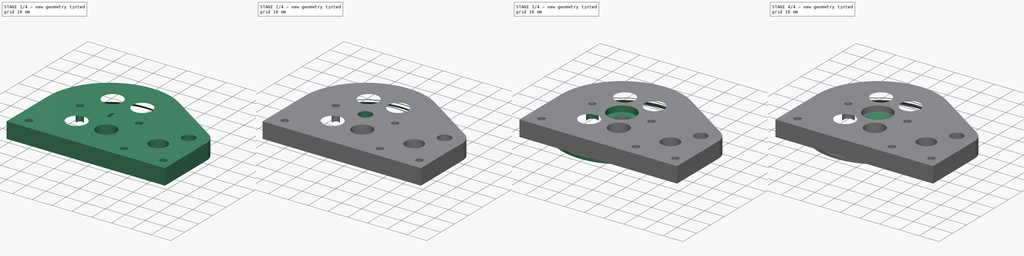
[diagram: build sequence overview — one tinted view per stage of 4, left to right]
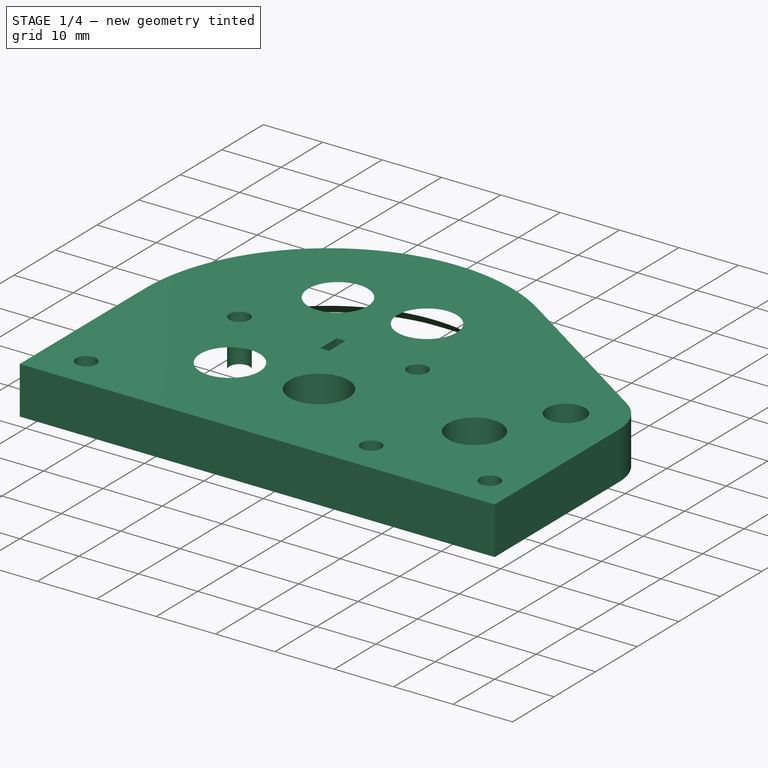
[diagram: stage 1 of 4 — iso view after this stage's code; geometry added in this stage tinted green]
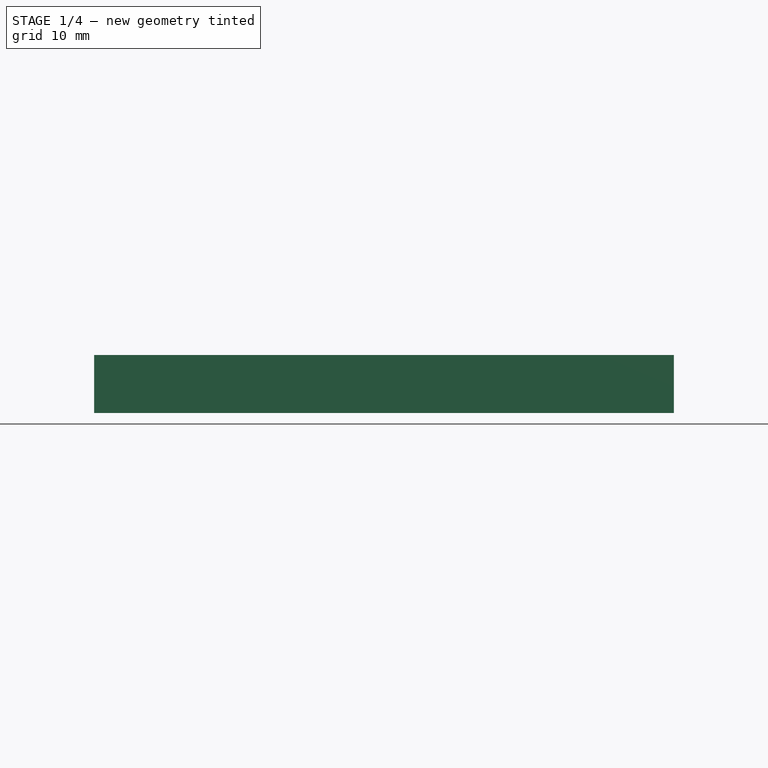
[diagram: stage 1 of 4 — front view after this stage's code; geometry added in this stage tinted green]
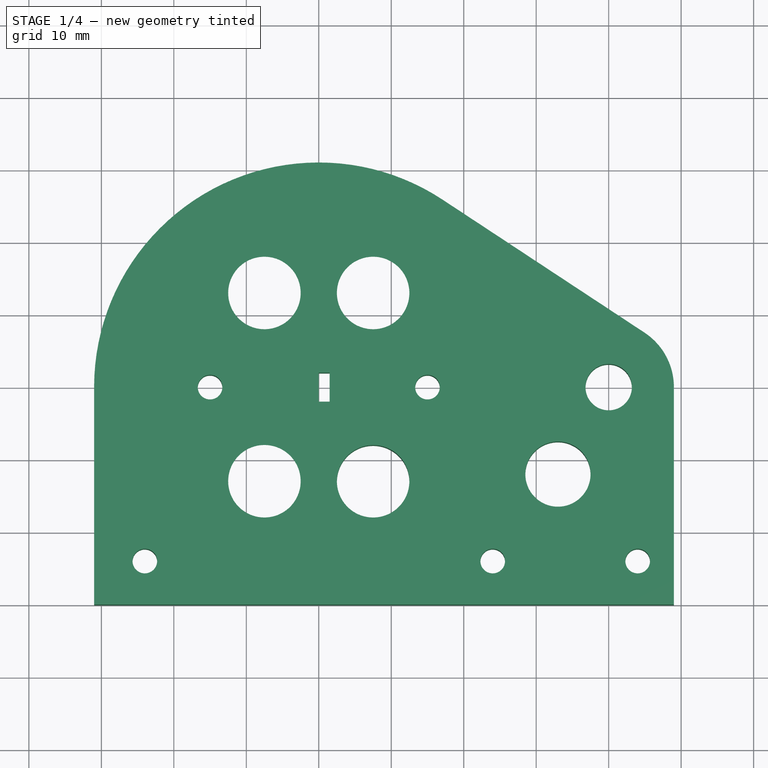
[diagram: stage 1 of 4 — top view after this stage's code; geometry added in this stage tinted green]
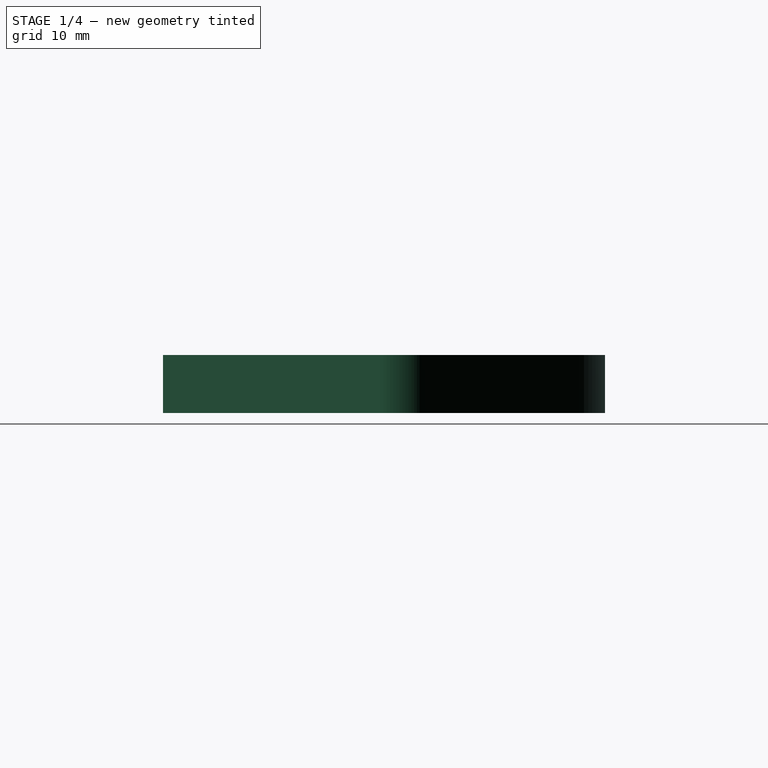
[diagram: stage 1 of 4 — right view after this stage's code; geometry added in this stage tinted green]
FCSTD DOCUMENT  (FreeCAD 0.16R6706 (Git))
Label: LowerKneeRace
License: All rights reserved
LicenseURL: http://en.wikipedia.org/wiki/All_rights_reserved
objects: Sketcher::SketchObject×8, PartDesign::Groove×3, PartDesign::Pocket×3, PartDesign::Pad×2, PartDesign::Chamfer×2
note: 26 computed .brp shape members not serialized (recipe doc carries the construction recipe); baked Part::Feature solids carry a one-line shape summary decoded from their .brp

FEATURE [Sketcher::SketchObject] Sketch
  sketch-geometry (34):
    g0: LineSegment StartX=49 StartY=-30 StartZ=0 EndX=-31 EndY=-30 EndZ=0
    g1: LineSegment StartX=-31 StartY=-30 StartZ=0 EndX=-31 EndY=0 EndZ=0
    g2: Circle [constr] CenterX=0 CenterY=0 CenterZ=0 NormalX=0 NormalY=0 NormalZ=1 Radius=8.5
    g3: Circle [constr] CenterX=0 CenterY=0 CenterZ=0 NormalX=0 NormalY=0 NormalZ=1 Radius=25
    g4: GeomPoint [constr] X=25 Y=0 Z=0
    g5: Circle [constr] CenterX=0 CenterY=0 CenterZ=0 NormalX=0 NormalY=0 NormalZ=1 Radius=3.2
    g6: LineSegment StartX=0 StartY=2 StartZ=0 EndX=1.5 EndY=2 EndZ=0
    g7: LineSegment StartX=1.5 StartY=2 StartZ=0 EndX=1.5 EndY=-2 EndZ=0
    g8: LineSegment StartX=1.5 StartY=-2 StartZ=0 EndX=0 EndY=-2 EndZ=0
    g9: LineSegment StartX=0 StartY=-2 StartZ=0 EndX=0 EndY=2 EndZ=0
    g10: GeomPoint [constr] X=0 Y=25 Z=0
    g11: GeomPoint [constr] X=0 Y=-25 Z=0
    g12: Circle CenterX=40 CenterY=0 CenterZ=0 NormalX=0 NormalY=0 NormalZ=1 Radius=3.2
    g13: LineSegment StartX=17.05 StartY=25.8901 StartZ=0 EndX=44.95 EndY=7.51648 EndZ=0
    g14: LineSegment StartX=49 StartY=1e-12 StartZ=0 EndX=49 EndY=-30 EndZ=0
    g15: LineSegment [constr] StartX=-31 StartY=-24 StartZ=0 EndX=49 EndY=-24 EndZ=0
    g16: Circle CenterX=-24 CenterY=-24 CenterZ=0 NormalX=0 NormalY=0 NormalZ=1 Radius=1.7
    g17: Circle CenterX=24 CenterY=-24 CenterZ=0 NormalX=0 NormalY=0 NormalZ=1 Radius=1.7
    g18: Circle CenterX=-15 CenterY=0 CenterZ=0 NormalX=0 NormalY=0 NormalZ=1 Radius=1.7
    g19: Circle CenterX=15 CenterY=0 CenterZ=0 NormalX=0 NormalY=0 NormalZ=1 Radius=1.7
    g20: Circle CenterX=44 CenterY=-24 CenterZ=0 NormalX=0 NormalY=0 NormalZ=1 Radius=1.7
    g21: ArcOfCircle CenterX=-3e-12 CenterY=3e-12 CenterZ=0 NormalX=0 NormalY=0 NormalZ=1 Radius=31 StartAngle=1.5708 EndAngle=3.14159
    g22: ArcOfCircle CenterX=0 CenterY=0 CenterZ=0 NormalX=0 NormalY=0 NormalZ=1 Radius=31 StartAngle=0.988432 EndAngle=1.5708
    g23: GeomPoint [constr] X=-25 Y=0 Z=0
    g24: ArcOfCircle CenterX=40 CenterY=0 CenterZ=0 NormalX=0 NormalY=0 NormalZ=1 Radius=9 StartAngle=0 EndAngle=0.988432
    g25: Circle CenterX=33 CenterY=-12 CenterZ=0 NormalX=0 NormalY=0 NormalZ=1 Radius=4.5
    g26: Circle CenterX=-7.5 CenterY=12.9904 CenterZ=0 NormalX=0 NormalY=0 NormalZ=1 Radius=5
    g27: Circle CenterX=7.5 CenterY=12.9904 CenterZ=0 NormalX=0 NormalY=0 NormalZ=1 Radius=5
    g28: Circle CenterX=-7.5 CenterY=-12.9904 CenterZ=0 NormalX=0 NormalY=0 NormalZ=1 Radius=5
    g29: Circle CenterX=7.5 CenterY=-12.9904 CenterZ=0 NormalX=0 NormalY=0 NormalZ=1 Radius=5
    g30: Circle [constr] CenterX=0 CenterY=0 CenterZ=0 NormalX=0 NormalY=0 NormalZ=1 Radius=15
    g31: LineSegment [constr] StartX=-7.5 StartY=12.9904 StartZ=0 EndX=7.5 EndY=-12.9904 EndZ=0
    g32: LineSegment [constr] StartX=-7.5 StartY=-12.9904 StartZ=0 EndX=7.5 EndY=12.9904 EndZ=0
    g33: Circle [constr] CenterX=40 CenterY=0 CenterZ=0 NormalX=0 NormalY=0 NormalZ=1 Radius=7
  constraints (92):
    c: Coincident(g0,g1)
    c: Horizontal(g0)
    c: Vertical(g1)
    c: Coincident(g2,g-1)
    c: Radius(g2) = 8.5
    c: Coincident(g3,g-1)
    c: Radius(g3) = 25
    c: PointOnObject(g4,g-1)
    c: PointOnObject(g4,g3)
    c: Coincident(g5,g-1)
    c: Radius(g5) = 3.2
    c: Coincident(g6,g7)
    c: Coincident(g7,g8)
    c: Coincident(g8,g9)
    c: Coincident(g9,g6)
    c: Horizontal(g6)
    c: Horizontal(g8)
    c: Vertical(g7)
    c: Vertical(g9)
    c: Symmetric(g6,g8,g-1)
    c: DistanceX(g8,g7) = 1.5
    c: DistanceY(g8,g6) = 4
    c: PointOnObject(g10,g3)
    c: PointOnObject(g11,g3)
    c: PointOnObject(g12,g-1)
    c: Radius(g12) = 3.2
    c: DistanceX(g-1,g12) = 40
    c: Coincident(g14,g0)
    c: Vertical(g14)
    c: PointOnObject(g15,g1)
    c: PointOnObject(g15,g14)
    c: Horizontal(g15)
    c: DistanceY(g0,g15) = 6
    c: PointOnObject(g16,g15)
    c: PointOnObject(g17,g15)
    c: PointOnObject(g20,g15)
    c: Radius(g20) = 1.7
    c: Equal(g20,g19)
    c: Equal(g20,g18)
    c: Equal(g20,g16)
    c: Equal(g20,g17)
    c: PointOnObject(g18,g-1)
    c: PointOnObject(g19,g-1)
    c: Symmetric(g18,g19,g-1)
    c: DistanceX(g18,g19) = 30
    c: Symmetric(g16,g17,g-2)
    c: DistanceX(g16,g17) = 48
    c: DistanceX(g17,g20) = 20
    c: Tangent(g1,g21) = 1.5708
    c: PointOnObject(g11,g-2)
    c: DistanceY(g0,g11) = 5
    c: PointOnObject(g1,g-1)
    c: Tangent(g13,g22) = 1.5708
    c: PointOnObject(g23,g3)
    c: PointOnObject(g23,g-1)
    c: DistanceX(g1,g23) = 6
    c: Coincident(g22,g21)
    c: DistanceY(g10,g21) = 6
    c: PointOnObject(g21,g-2)
    c: DistanceX(g12,g0) = 9
    c: Tangent(g14,g24) = 1.5708
    c: Tangent(g13,g24) = 1.5708
    c: Coincident(g12,g24)
    c: PointOnObject(g10,g-2)
    c: Coincident(g22,g-1)
    c: DistanceY(g0,g-1) = 30
    c: Radius(g25) = 4.5
    c: DistanceX(g17,g25) = 9
    c: DistanceY(g0,g25) = 18
    c: Coincident(g30,g-1)
    c: PointOnObject(g26,g30)
    c: PointOnObject(g27,g30)
    c: PointOnObject(g28,g30)
    c: PointOnObject(g29,g30)
    c: Radius(g30) = 15
    c: Coincident(g31,g29)
    c: Coincident(g32,g28)
    c: Coincident(g32,g27)
    c: PointOnObject(g-1,g31)
    c: PointOnObject(g-1,g32)
    c: Angle(g32,g31) = 1.0472
    c: Angle(g-1,g32) = 1.0472
    c: Coincident(g31,g26)
    c: Radius(g29) = 5
    c: Equal(g29,g28)
    c: Equal(g29,g26)
    c: Equal(g29,g27)
    c: DistanceX(g1,g-1) = 31
    c: DistanceX(g0,g16) = 7
    c: DistanceX(g20,g0) = 5
    c: Coincident(g33,g12)
    c: Radius(g33) = 7
FEATURE [PartDesign::Pad] Pad
  Length = 8
  Length2 = 100
  Sketch = -> Sketch
  Type = 0
FEATURE [Sketcher::SketchObject] Sketch002  label="Grove1"
  Placement = pos=(0,0,0) rot=(0.57735,0.57735,0.57735;2.0944rad)
  Support = -> Pad [Face22]
  sketch-geometry (10):
    g0: Circle [constr] CenterX=25 CenterY=-0.4 CenterZ=0 NormalX=0 NormalY=0 NormalZ=1 Radius=1.9
    g1: LineSegment StartX=23.113 StartY=0.4 StartZ=0 EndX=24.513 EndY=1.8 EndZ=0
    g2: LineSegment StartX=24.513 StartY=1.8 StartZ=0 EndX=25.487 EndY=1.8 EndZ=0
    g3: LineSegment StartX=25.487 StartY=1.8 StartZ=0 EndX=27.287 EndY=0 EndZ=0
    g4: LineSegment StartX=27.287 StartY=0 StartZ=0 EndX=27.287 EndY=-10 EndZ=0
    g5: LineSegment StartX=27.287 StartY=-10 StartZ=0 EndX=20 EndY=-10 EndZ=0
    g6: LineSegment [constr] StartX=25 StartY=1.8 StartZ=0 EndX=25 EndY=-10 EndZ=0
    g7: GeomPoint [constr] X=25 Y=1.5 Z=0
    g8: LineSegment StartX=23.113 StartY=0.4 StartZ=0 EndX=20 EndY=0.4 EndZ=0
    g9: LineSegment StartX=20 StartY=0.4 StartZ=0 EndX=20 EndY=-10 EndZ=0
  constraints (30):
    c: DistanceY(g0,g-1) = 0.4
    c: DistanceX(g-1,g0) = 25
    c: Radius(g0) = 1.9
    c: Coincident(g1,g2)
    c: Coincident(g2,g3)
    c: PointOnObject(g3,g-1)
    c: Coincident(g3,g4)
    c: Vertical(g4)
    c: Coincident(g4,g5)
    c: Horizontal(g5)
    c: PointOnObject(g6,g5)
    c: Vertical(g6)
    c: Horizontal(g2)
    c: PointOnObject(g6,g2)
    c: PointOnObject(g0,g6)
    c: Symmetric(g1,g2,g6)
    c: Tangent(g0,g1)
    c: Tangent(g3,g0)
    c: Angle(g1,g3) = 1.5708
    c: PointOnObject(g7,g0)
    c: PointOnObject(g7,g6)
    c: DistanceY(g7,g6) = 0.3
    c: Coincident(g8,g1)
    c: Horizontal(g8)
    c: Coincident(g9,g8)
    c: Vertical(g9)
    c: Coincident(g5,g9)
    c: DistanceY(g4,g3) = 10
    c: DistanceY(g-1,g8) = 0.4
    c: DistanceX(g-1,g8) = 20
FEATURE [PartDesign::Groove] Groove
  Angle = 360
  Axis = (0,0,1)
  Base = (0,0,0)
  ReferenceAxis = -> Sketch002 [V_Axis]
  Sketch = -> Sketch002
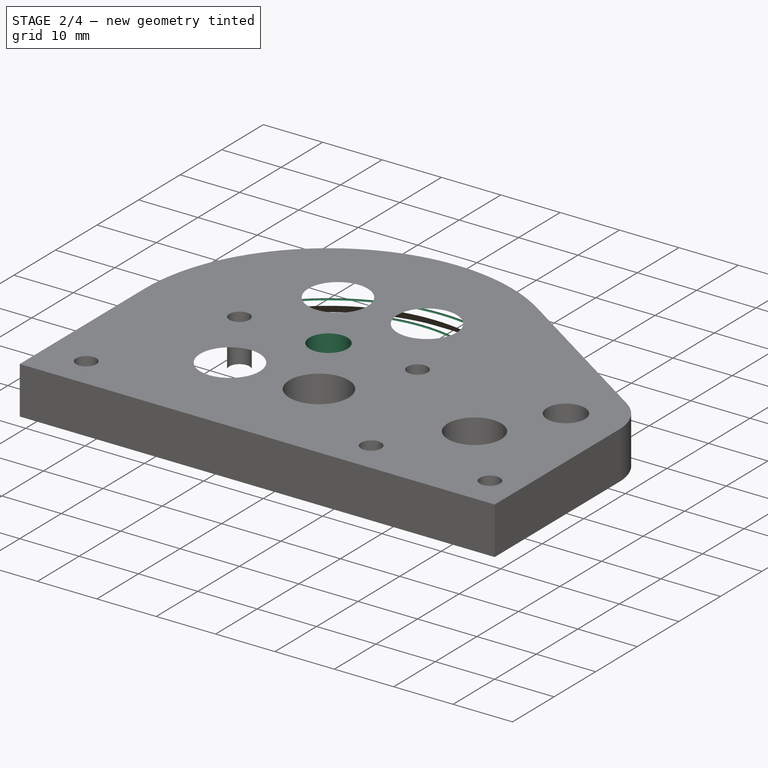
[diagram: stage 2 of 4 — iso view after this stage's code; geometry added in this stage tinted green]
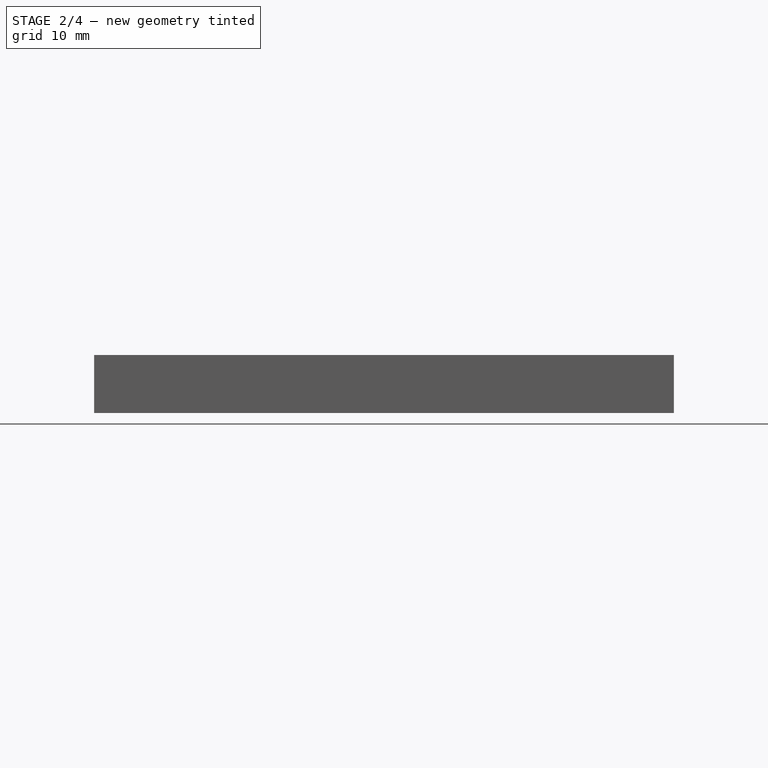
[diagram: stage 2 of 4 — front view after this stage's code; geometry added in this stage tinted green]
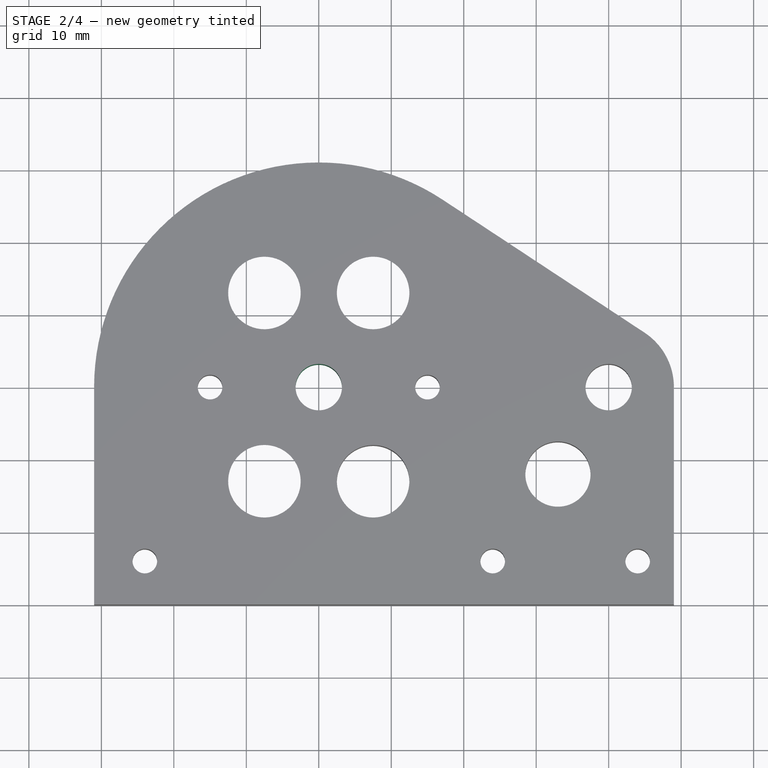
[diagram: stage 2 of 4 — top view after this stage's code; geometry added in this stage tinted green]
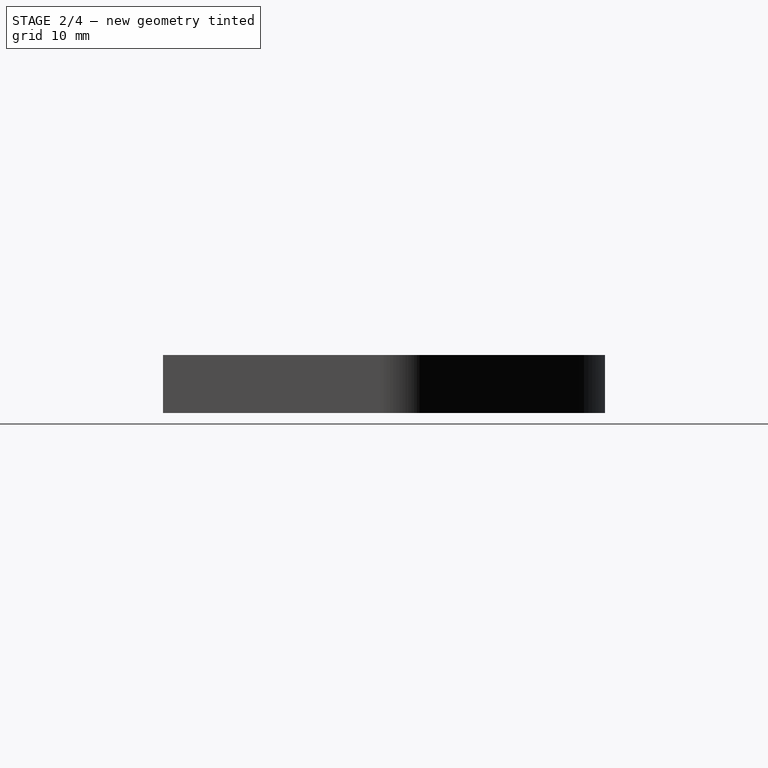
[diagram: stage 2 of 4 — right view after this stage's code; geometry added in this stage tinted green]
FEATURE [Sketcher::SketchObject] Sketch027  label="InnerReinforce"
  Placement = pos=(0,0,0) rot=(0.57735,0.57735,0.57735;2.0944rad)
  Support = -> Groove [Face25]
  sketch-geometry (1):
    g0: Circle CenterX=22.67 CenterY=1.93 CenterZ=0 NormalX=0 NormalY=0 NormalZ=1 Radius=0.15
  constraints (3):
    c: Radius(g0) = 0.15
    c: DistanceX(g-1,g0) = 22.67
    c: DistanceY(g-1,g0) = 1.93
FEATURE [PartDesign::Groove] Groove001
  Angle = 360
  Axis = (0,0,1)
  Base = (0,0,0)
  ReferenceAxis = -> Sketch027 [V_Axis]
  Sketch = -> Sketch027
FEATURE [Sketcher::SketchObject] Sketch028  label="OuterReinforce"
  Placement = pos=(0,0,0) rot=(0.57735,0.57735,0.57735;2.0944rad)
  Support = -> Groove001 [Face25]
  sketch-geometry (1):
    g0: Circle CenterX=27.33 CenterY=1.93 CenterZ=0 NormalX=0 NormalY=0 NormalZ=1 Radius=0.15
  constraints (3):
    c: Radius(g0) = 0.15
    c: DistanceX(g-1,g0) = 27.33
    c: DistanceY(g-1,g0) = 1.93
FEATURE [PartDesign::Groove] Groove002
  Angle = 360
  Axis = (0,0,1)
  Base = (0,0,0)
  ReferenceAxis = -> Sketch028 [V_Axis]
  Sketch = -> Sketch028
FEATURE [Sketcher::SketchObject] Sketch003  label="CentreHole"
  Placement = pos=(0,0,0) rot=(1,0,0;3.14159rad)
  Support = -> Groove002 [Face27]
  sketch-geometry (1):
    g0: Circle CenterX=0 CenterY=0 CenterZ=0 NormalX=0 NormalY=0 NormalZ=1 Radius=3.2
  constraints (2):
    c: Coincident(g0,g-1)
    c: Radius(g0) = 3.2
FEATURE [PartDesign::Pocket] Pocket001
  Length = 5
  Midplane = true
  Sketch = -> Sketch003
  Type = 1
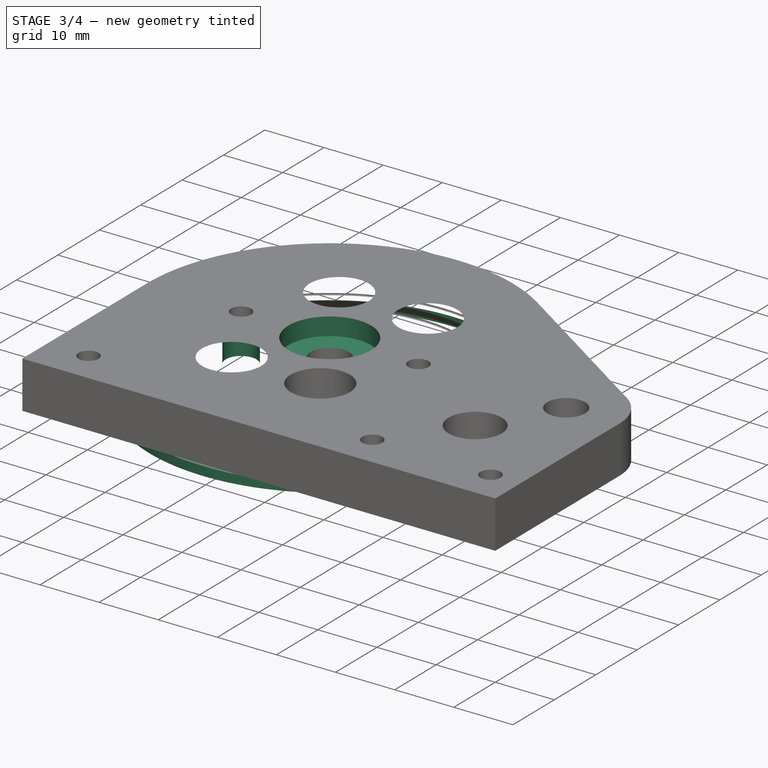
[diagram: stage 3 of 4 — iso view after this stage's code; geometry added in this stage tinted green]
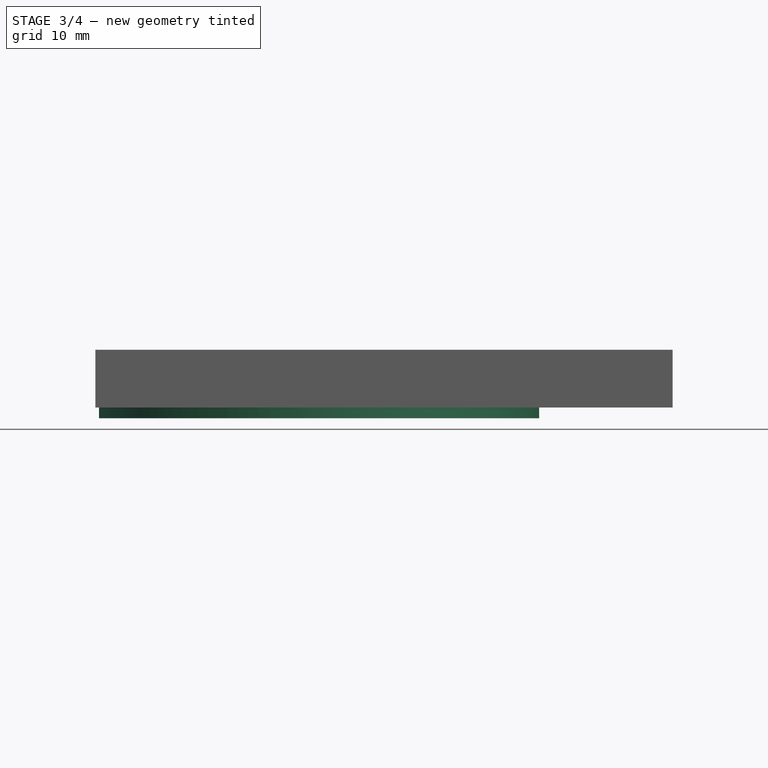
[diagram: stage 3 of 4 — front view after this stage's code; geometry added in this stage tinted green]
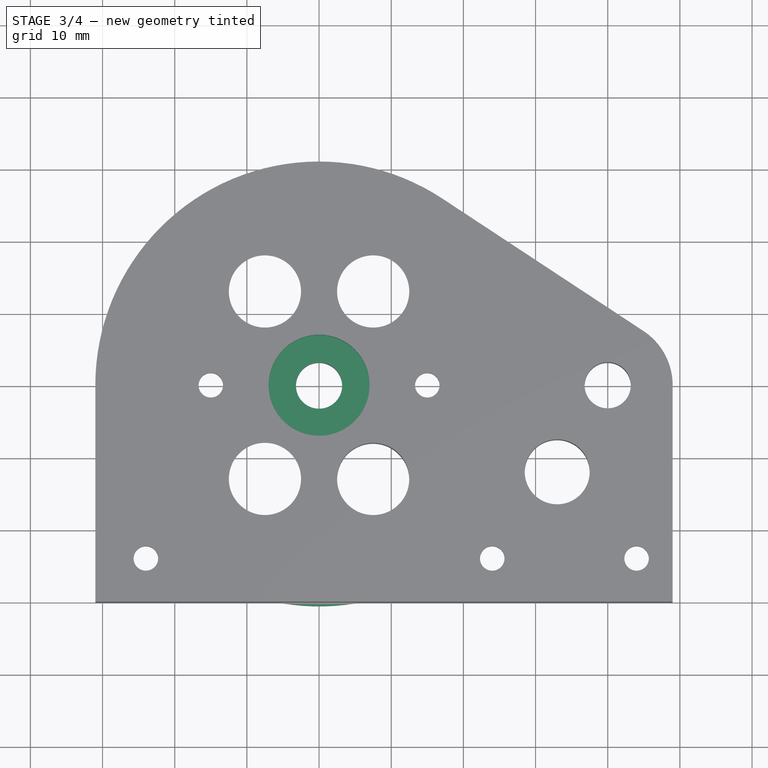
[diagram: stage 3 of 4 — top view after this stage's code; geometry added in this stage tinted green]
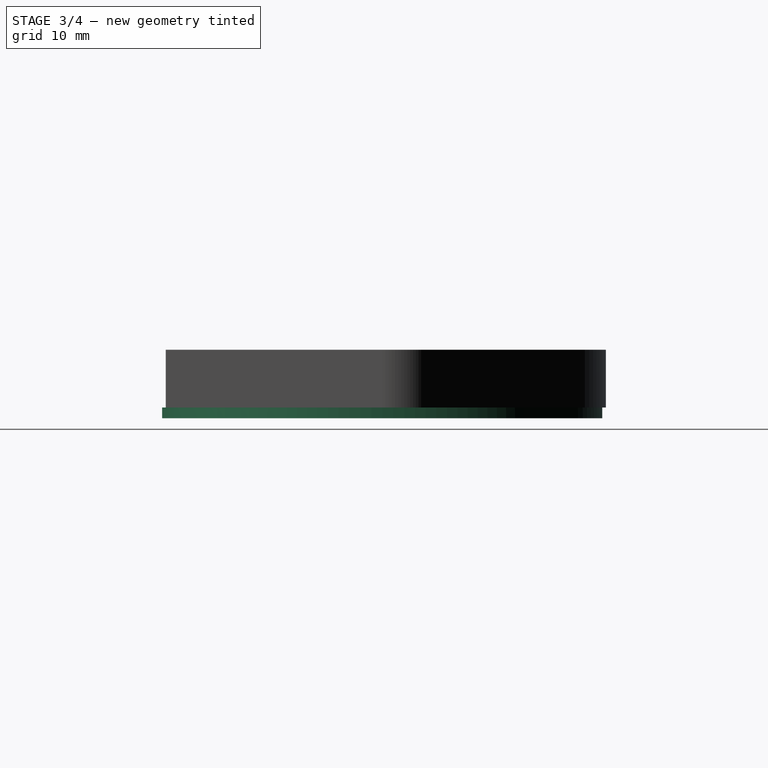
[diagram: stage 3 of 4 — right view after this stage's code; geometry added in this stage tinted green]
FEATURE [Sketcher::SketchObject] Sketch004  label="BearingHole"
  Placement = pos=(0,0,8) rot=(0,0,1;0rad)
  Support = -> Pocket001 [Face5]
  sketch-geometry (1):
    g0: Circle CenterX=0 CenterY=0 CenterZ=0 NormalX=0 NormalY=0 NormalZ=1 Radius=7
  constraints (2):
    c: Coincident(g0,g-1)
    c: Radius(g0) = 7
FEATURE [PartDesign::Pocket] Pocket
  Length = 3
  Sketch = -> Sketch004
  Type = 0
FEATURE [Sketcher::SketchObject] Sketch029  label="Inserts"
  Placement = pos=(0,0,0) rot=(1,0,0;3.14159rad)
  Support = -> Pocket [Face24]
  sketch-geometry (6):
    g0: Circle CenterX=-24 CenterY=24 CenterZ=0 NormalX=0 NormalY=0 NormalZ=1 Radius=2.6
    g1: Circle CenterX=24 CenterY=24 CenterZ=0 NormalX=0 NormalY=0 NormalZ=1 Radius=2.6
    g2: Circle CenterX=44 CenterY=24 CenterZ=0 NormalX=0 NormalY=0 NormalZ=1 Radius=2.6
    g3: Circle CenterX=-15 CenterY=0 CenterZ=0 NormalX=0 NormalY=0 NormalZ=1 Radius=2.6
    g4: Circle CenterX=15 CenterY=0 CenterZ=0 NormalX=0 NormalY=0 NormalZ=1 Radius=2.6
    g5: LineSegment [constr] StartX=-24 StartY=24 StartZ=0 EndX=44 EndY=24 EndZ=0
  constraints (17):
    c: PointOnObject(g3,g-1)
    c: PointOnObject(g4,g-1)
    c: Radius(g4) = 2.6
    c: Equal(g4,g3)
    c: Equal(g4,g0)
    c: Equal(g4,g1)
    c: Equal(g4,g2)
    c: Symmetric(g4,g3,g-1)
    c: DistanceX(g3,g4) = 30
    c: Coincident(g5,g0)
    c: Coincident(g5,g2)
    c: Horizontal(g5)
    c: PointOnObject(g1,g5)
    c: Symmetric(g0,g1,g-2)
    c: DistanceY(g-1,g0) = 24
    c: DistanceX(g0,g1) = 48
    c: DistanceX(g1,g2) = 20
FEATURE [PartDesign::Pocket] Pocket002
  Length = 5
  Sketch = -> Sketch029
  Type = 0
FEATURE [Sketcher::SketchObject] Sketch030
  Placement = pos=(0,0,0) rot=(1,0,0;3.14159rad)
  Support = -> Pocket002 [Face4]
  sketch-geometry (2):
    g0: Circle CenterX=0 CenterY=0 CenterZ=0 NormalX=0 NormalY=0 NormalZ=1 Radius=29.5
    g1: Circle CenterX=0 CenterY=0 CenterZ=0 NormalX=0 NormalY=0 NormalZ=1 Radius=30.5
  constraints (4):
    c: Coincident(g0,g-1)
    c: Coincident(g1,g-1)
    c: Radius(g0) = 29.5
    c: Radius(g1) = 30.5
FEATURE [PartDesign::Pad] Pad001
  Length = 1.5
  Length2 = 100
  Sketch = -> Sketch030
  Type = 0
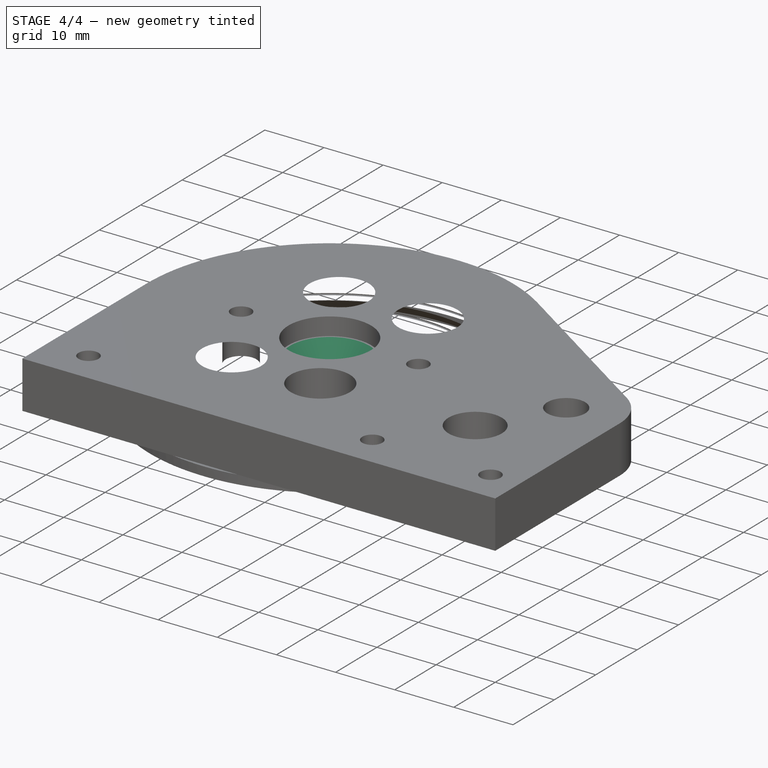
[diagram: stage 4 of 4 — iso view after this stage's code; geometry added in this stage tinted green]
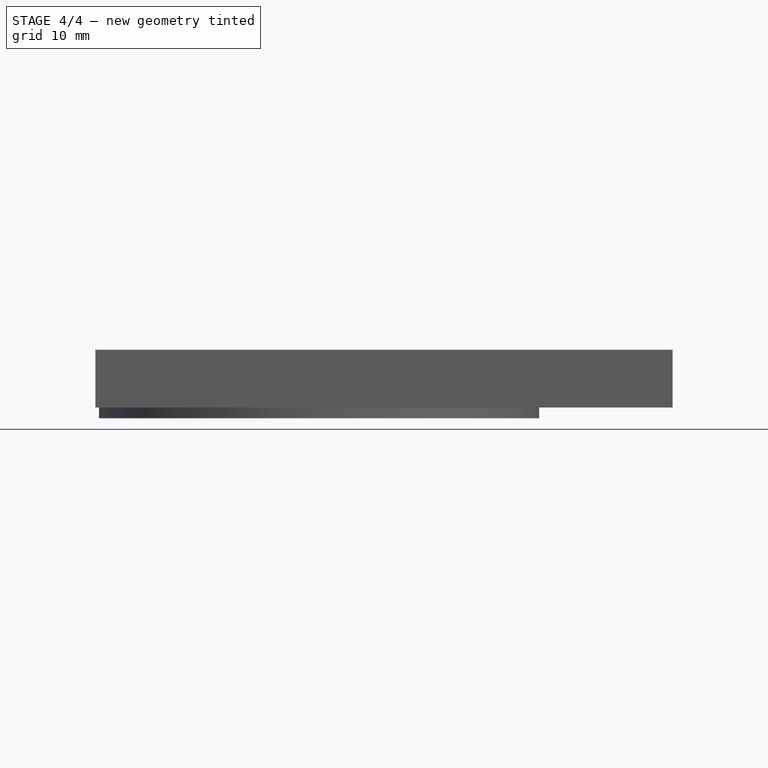
[diagram: stage 4 of 4 — front view after this stage's code; geometry added in this stage tinted green]
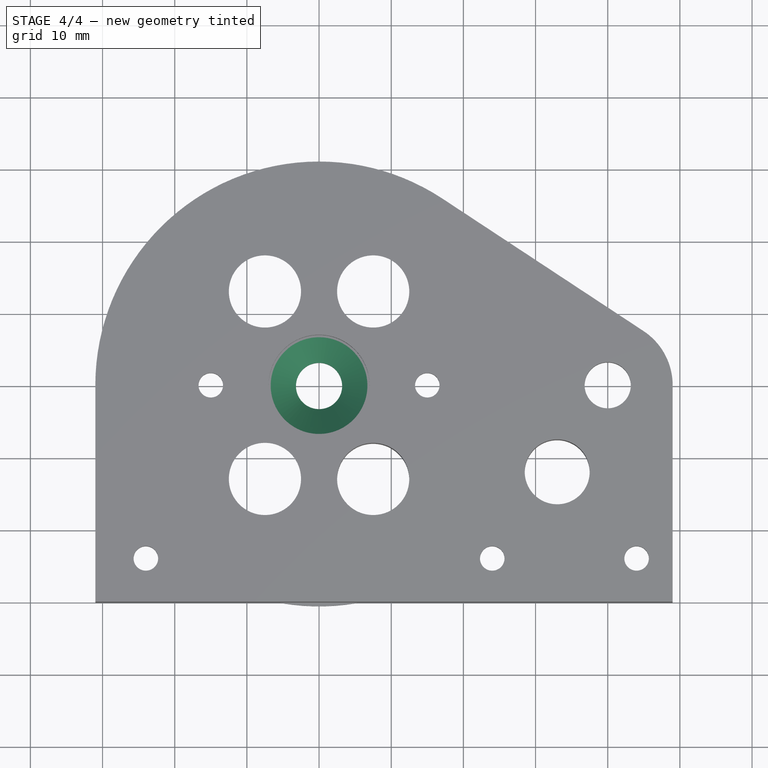
[diagram: stage 4 of 4 — top view after this stage's code; geometry added in this stage tinted green]
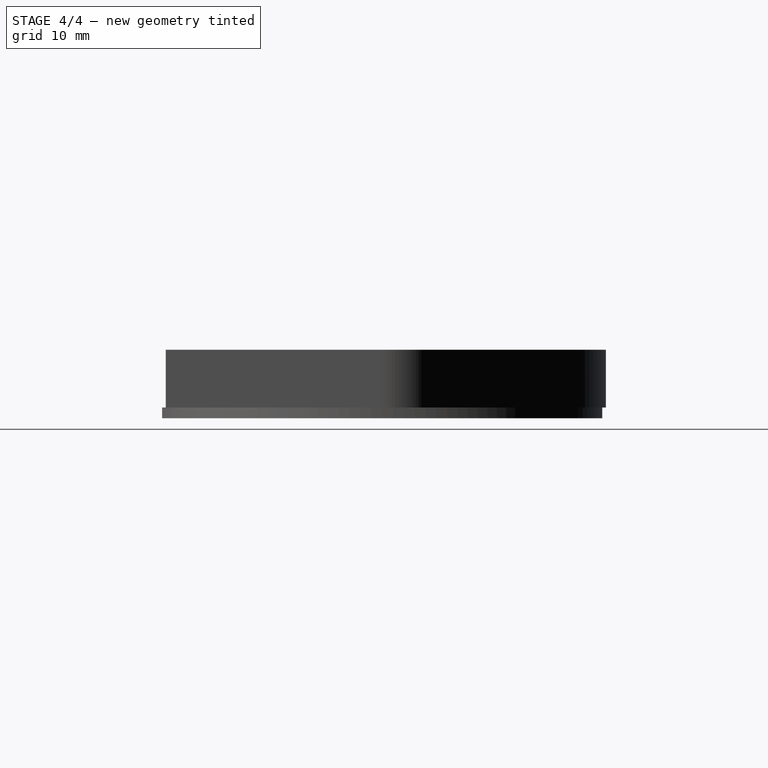
[diagram: stage 4 of 4 — right view after this stage's code; geometry added in this stage tinted green]
FEATURE [PartDesign::Chamfer] Chamfer
  Base = -> Pad001 [Edge19]
  Size = 3.5
FEATURE [PartDesign::Chamfer] Chamfer001
  Base = -> Chamfer [Edge102]
  Size = 3.5
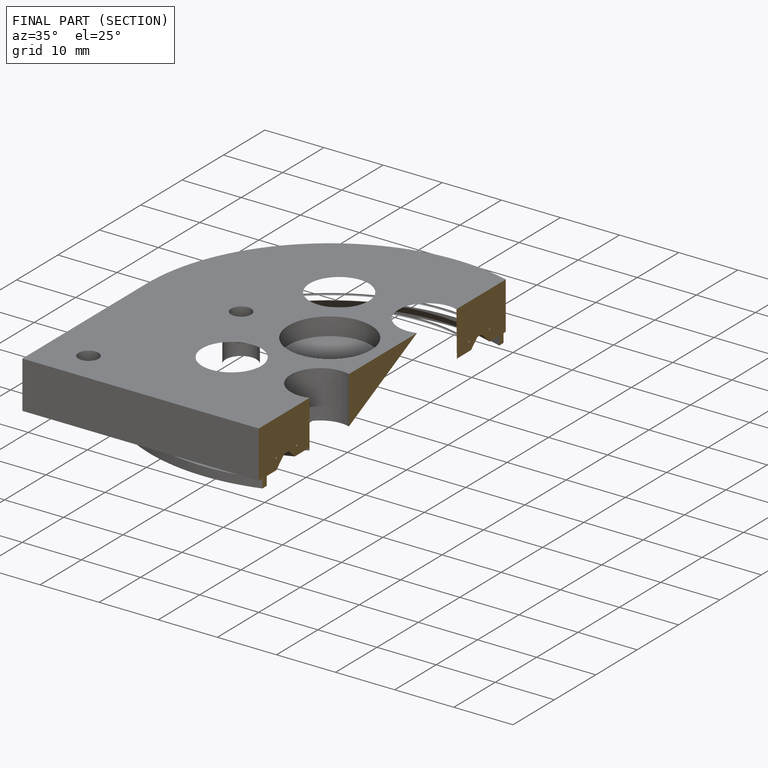
[diagram: finished part — half-section view (interior)]
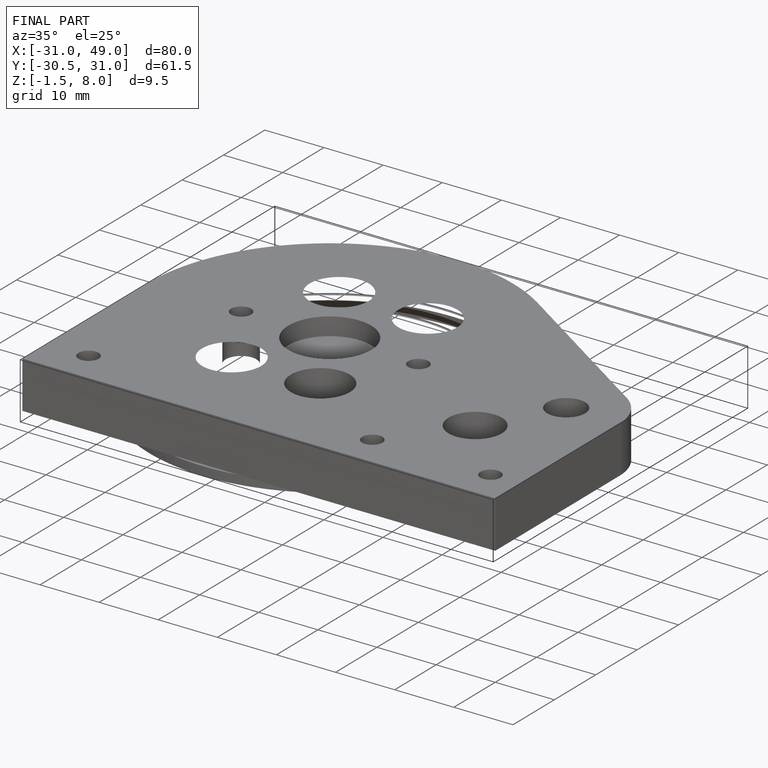
[diagram: finished part — iso view with bounding-box wireframe]
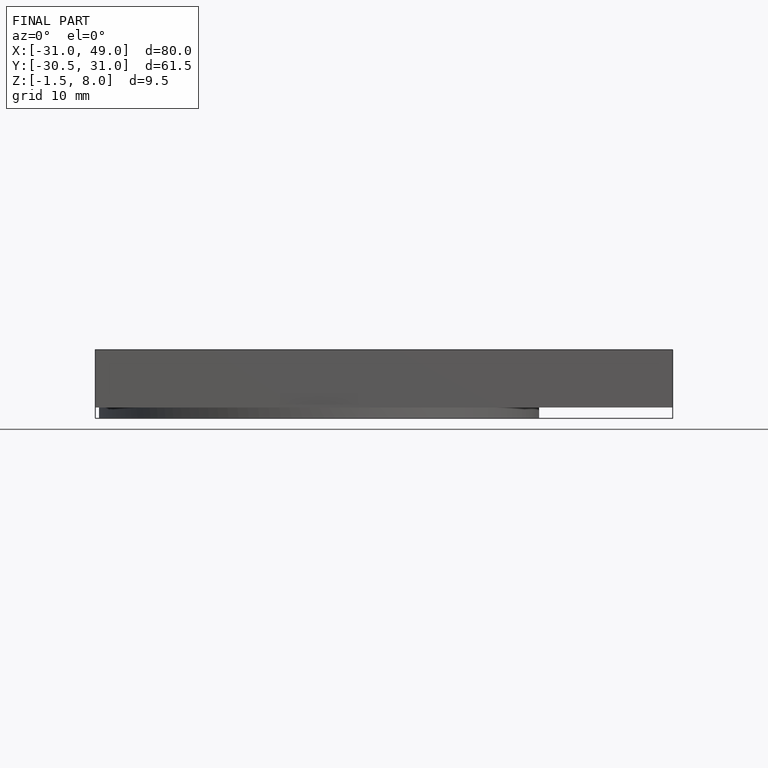
[diagram: finished part — front view with bounding-box wireframe]
